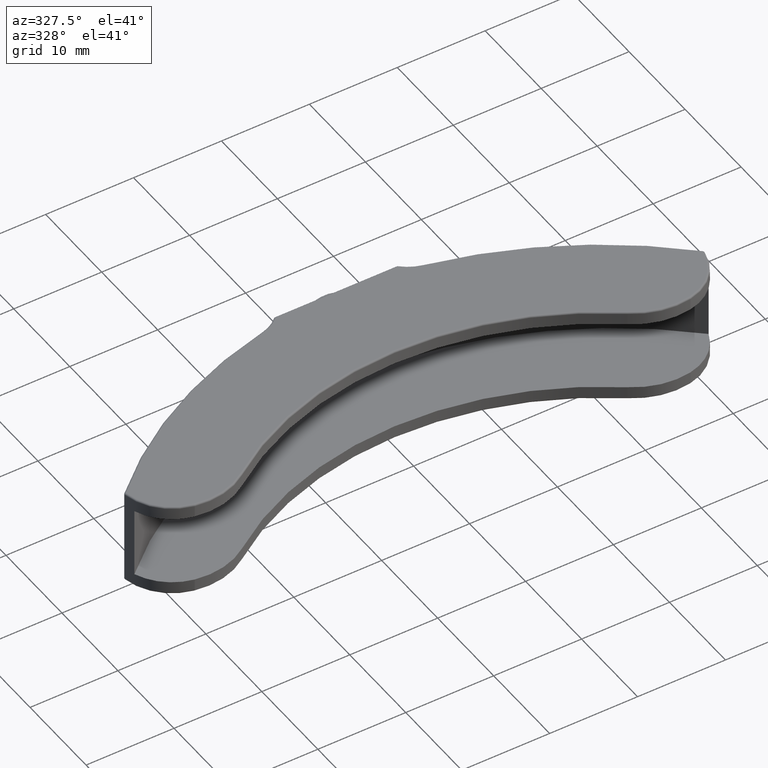
[diagram: clean part render]
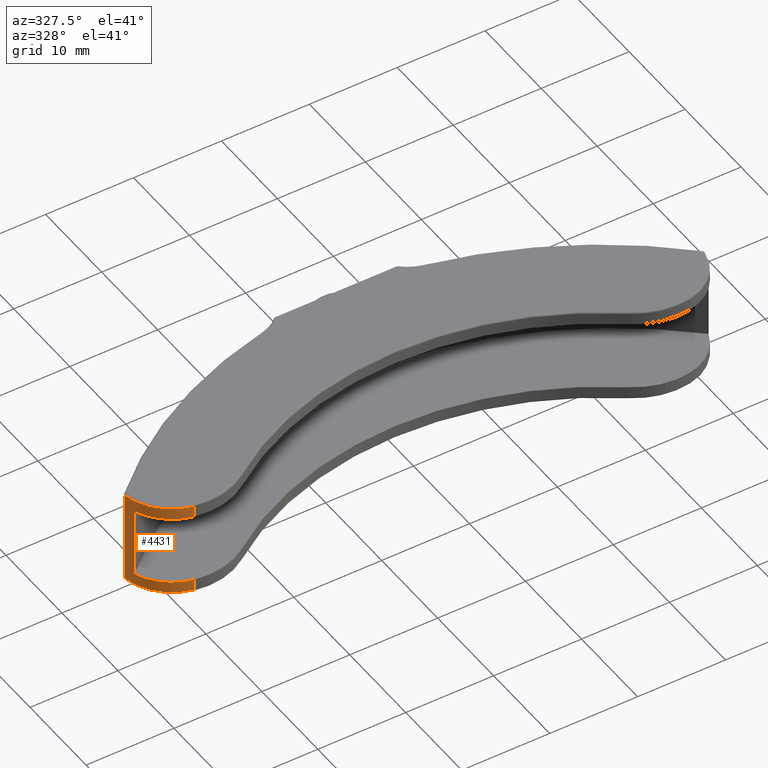
[diagram: same view with one face highlighted and labeled with its STEP entity id]
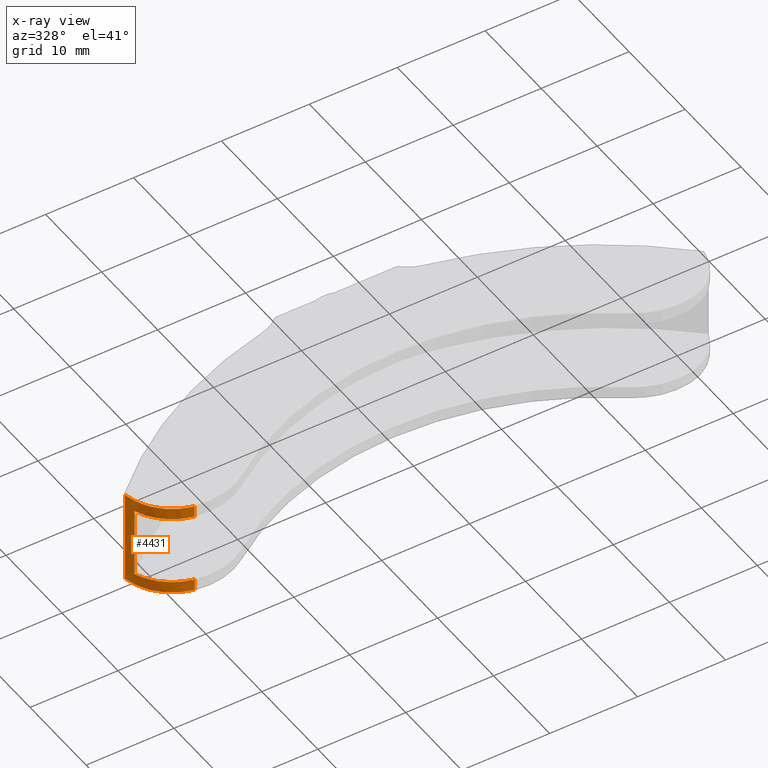
[diagram: x-ray of the same camera — body ghosted, the highlighted face saturated]
A machine part, auxiliary view. The second image highlights one B-rep face of the part: STEP entity #4431.
The next image is the same camera in x-ray: the body ghosted, the highlighted face saturated — about 0% of this face is hidden behind the body in this view.
In plain terms, the highlighted cylindrical surface (partial cylindrical patch) has radius 6 mm, axis along (-0, -0, -1).
Its self-contained STEP definition (entity closure, byte-faithful):
#33 = EDGE_CURVE ( 'NONE', #4281, #134, #4156, .T. ) ;
#101 = ORIENTED_EDGE ( 'NONE', *, *, #2575, .F. ) ;
#134 = VERTEX_POINT ( 'NONE', #3516 ) ;
#212 = ORIENTED_EDGE ( 'NONE', *, *, #33, .F. ) ;
#420 = CARTESIAN_POINT ( 'NONE',  ( -28.20759609870850326, -15.19419279878856166, 11.00000000000000000 ) ) ;
#445 = VERTEX_POINT ( 'NONE', #3557 ) ;
#526 = VECTOR ( 'NONE', #4662, 1000.000000000000000 ) ;
#574 = DIRECTION ( 'NONE',  ( -0.0000000000000000000, -0.0000000000000000000, -1.000000000000000000 ) ) ;
#616 = DIRECTION ( 'NONE',  ( -0.0000000000000000000, -0.0000000000000000000, -1.000000000000000000 ) ) ;
#1015 = DIRECTION ( 'NONE',  ( -0.0000000000000000000, -0.0000000000000000000, -1.000000000000000000 ) ) ;
#1085 = AXIS2_PLACEMENT_3D ( 'NONE', #3850, #3483, #4263 ) ;
#1201 = CIRCLE ( 'NONE', #1211, 6.000000000000001776 ) ;
#1211 = AXIS2_PLACEMENT_3D ( 'NONE', #4338, #616, #4798 ) ;
#1231 = VERTEX_POINT ( 'NONE', #1999 ) ;
#1270 = CARTESIAN_POINT ( 'NONE',  ( -32.66673148217365963, -11.42096321141382553, 9.500000000000000000 ) ) ;
#1350 = CARTESIAN_POINT ( 'NONE',  ( -32.66673148217365963, -11.42096321141382553, 9.500000000000000000 ) ) ;
#1424 = ORIENTED_EDGE ( 'NONE', *, *, #1937, .F. ) ;
#1452 = CIRCLE ( 'NONE', #4200, 6.000000000000001776 ) ;
#1556 = VECTOR ( 'NONE', #2566, 1000.000000000000000 ) ;
#1670 = DIRECTION ( 'NONE',  ( -1.000000000000000000, 0.0000000000000000000, 0.0000000000000000000 ) ) ;
#1699 = VECTOR ( 'NONE', #1015, 1000.000000000000000 ) ;
#1937 = EDGE_CURVE ( 'NONE', #134, #2058, #3302, .T. ) ;
#1999 = CARTESIAN_POINT ( 'NONE',  ( -28.20759609870850326, -15.19419279878856166, 1.499999999999999556 ) ) ;
#2019 = LINE ( 'NONE', #1350, #526 ) ;
#2032 = EDGE_LOOP ( 'NONE', ( #1424, #212, #2289, #3161, #3748, #2699, #2436, #101 ) ) ;
#2053 = EDGE_CURVE ( 'NONE', #445, #3966, #2190, .T. ) ;
#2056 = CYLINDRICAL_SURFACE ( 'NONE', #1085, 6.000000000000001776 ) ;
#2058 = VERTEX_POINT ( 'NONE', #1270 ) ;
#2079 = CARTESIAN_POINT ( 'NONE',  ( -32.66673148217365963, -11.42096321141382553, 1.499999999999999556 ) ) ;
#2139 = CARTESIAN_POINT ( 'NONE',  ( -32.98549218824159368, -10.19494858488425848, 11.00000000000000000 ) ) ;
#2162 = LINE ( 'NONE', #2139, #1699 ) ;
#2190 = CIRCLE ( 'NONE', #2595, 6.000000000000001776 ) ;
#2228 = CARTESIAN_POINT ( 'NONE',  ( -28.20759609870850326, -15.19419279878856166, 10.79999999999999893 ) ) ;
#2289 = ORIENTED_EDGE ( 'NONE', *, *, #4691, .T. ) ;
#2353 = CARTESIAN_POINT ( 'NONE',  ( -28.20759609870850326, -15.19419279878856166, 11.00000000000000000 ) ) ;
#2382 = CARTESIAN_POINT ( 'NONE',  ( -27.05161981531265880, -9.306602558951354354, 1.499999999999999556 ) ) ;
#2423 = DIRECTION ( 'NONE',  ( 0.0000000000000000000, 0.0000000000000000000, 1.000000000000000000 ) ) ;
#2436 = ORIENTED_EDGE ( 'NONE', *, *, #2694, .T. ) ;
#2566 = DIRECTION ( 'NONE',  ( -0.0000000000000000000, -0.0000000000000000000, -1.000000000000000000 ) ) ;
#2575 = EDGE_CURVE ( 'NONE', #2058, #4313, #2019, .T. ) ;
#2595 = AXIS2_PLACEMENT_3D ( 'NONE', #3221, #2423, #4264 ) ;
#2694 = EDGE_CURVE ( 'NONE', #1231, #4313, #1452, .T. ) ;
#2699 = ORIENTED_EDGE ( 'NONE', *, *, #3494, .F. ) ;
#2853 = FACE_OUTER_BOUND ( 'NONE', #2032, .T. ) ;
#3003 = CARTESIAN_POINT ( 'NONE',  ( -28.20759609870850326, -15.19419279878856166, 0.2000000000000005107 ) ) ;
#3059 = EDGE_CURVE ( 'NONE', #3065, #445, #2162, .T. ) ;
#3065 = VERTEX_POINT ( 'NONE', #4027 ) ;
#3161 = ORIENTED_EDGE ( 'NONE', *, *, #3059, .T. ) ;
#3221 = CARTESIAN_POINT ( 'NONE',  ( -27.05161981531265880, -9.306602558951354354, 0.2000000000000005107 ) ) ;
#3302 = CIRCLE ( 'NONE', #4681, 6.000000000000001776 ) ;
#3483 = DIRECTION ( 'NONE',  ( -0.0000000000000000000, -0.0000000000000000000, -1.000000000000000000 ) ) ;
#3494 = EDGE_CURVE ( 'NONE', #1231, #3966, #3872, .T. ) ;
#3516 = CARTESIAN_POINT ( 'NONE',  ( -28.20759609870850326, -15.19419279878856166, 9.500000000000000000 ) ) ;
#3557 = CARTESIAN_POINT ( 'NONE',  ( -32.98549218824159368, -10.19494858488425848, 0.2000000000000005107 ) ) ;
#3688 = DIRECTION ( 'NONE',  ( -0.0000000000000000000, -0.0000000000000000000, -1.000000000000000000 ) ) ;
#3734 = DIRECTION ( 'NONE',  ( -1.000000000000000000, 0.0000000000000000000, 0.0000000000000000000 ) ) ;
#3748 = ORIENTED_EDGE ( 'NONE', *, *, #2053, .T. ) ;
#3850 = CARTESIAN_POINT ( 'NONE',  ( -27.05161981531265880, -9.306602558951354354, 11.00000000000000000 ) ) ;
#3872 = LINE ( 'NONE', #2353, #4141 ) ;
#3966 = VERTEX_POINT ( 'NONE', #3003 ) ;
#4025 = CARTESIAN_POINT ( 'NONE',  ( -27.05161981531265880, -9.306602558951354354, 9.500000000000000000 ) ) ;
#4027 = CARTESIAN_POINT ( 'NONE',  ( -32.98549218824159368, -10.19494858488425848, 10.79999999999999893 ) ) ;
#4141 = VECTOR ( 'NONE', #574, 1000.000000000000000 ) ;
#4156 = LINE ( 'NONE', #420, #1556 ) ;
#4200 = AXIS2_PLACEMENT_3D ( 'NONE', #2382, #4298, #1670 ) ;
#4263 = DIRECTION ( 'NONE',  ( -1.000000000000000000, 0.0000000000000000000, 0.0000000000000000000 ) ) ;
#4264 = DIRECTION ( 'NONE',  ( -1.000000000000000000, 0.0000000000000000000, 0.0000000000000000000 ) ) ;
#4281 = VERTEX_POINT ( 'NONE', #2228 ) ;
#4298 = DIRECTION ( 'NONE',  ( -0.0000000000000000000, -0.0000000000000000000, -1.000000000000000000 ) ) ;
#4313 = VERTEX_POINT ( 'NONE', #2079 ) ;
#4338 = CARTESIAN_POINT ( 'NONE',  ( -27.05161981531265880, -9.306602558951354354, 10.79999999999999893 ) ) ;
#4431 = ADVANCED_FACE ( 'NONE', ( #2853 ), #2056, .T. ) ;
#4662 = DIRECTION ( 'NONE',  ( 0.0000000000000000000, 0.0000000000000000000, -1.000000000000000000 ) ) ;
#4681 = AXIS2_PLACEMENT_3D ( 'NONE', #4025, #3688, #3734 ) ;
#4691 = EDGE_CURVE ( 'NONE', #4281, #3065, #1201, .T. ) ;
#4798 = DIRECTION ( 'NONE',  ( -1.000000000000000000, 0.0000000000000000000, 0.0000000000000000000 ) ) ;